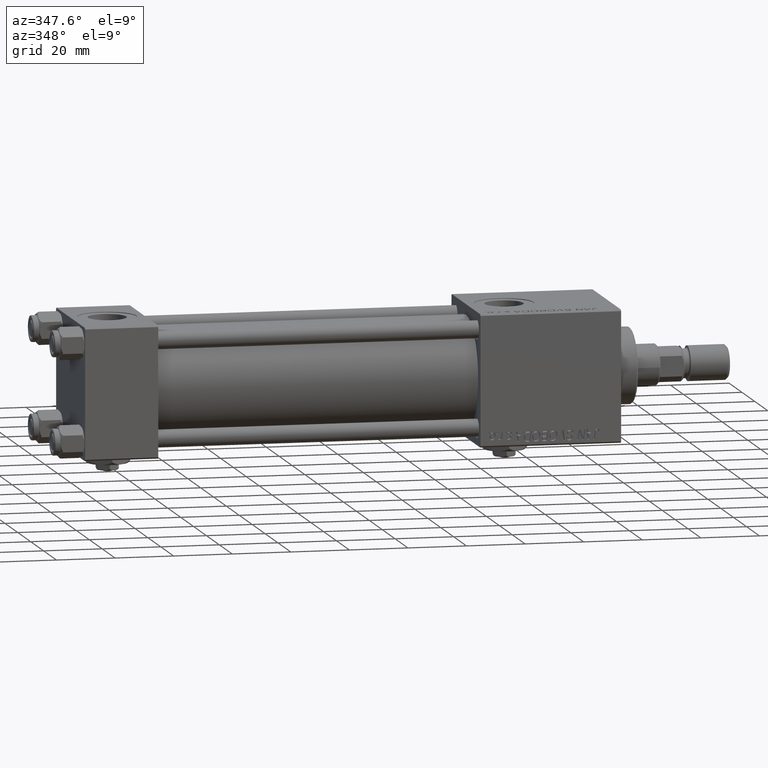
[diagram: clean part render]
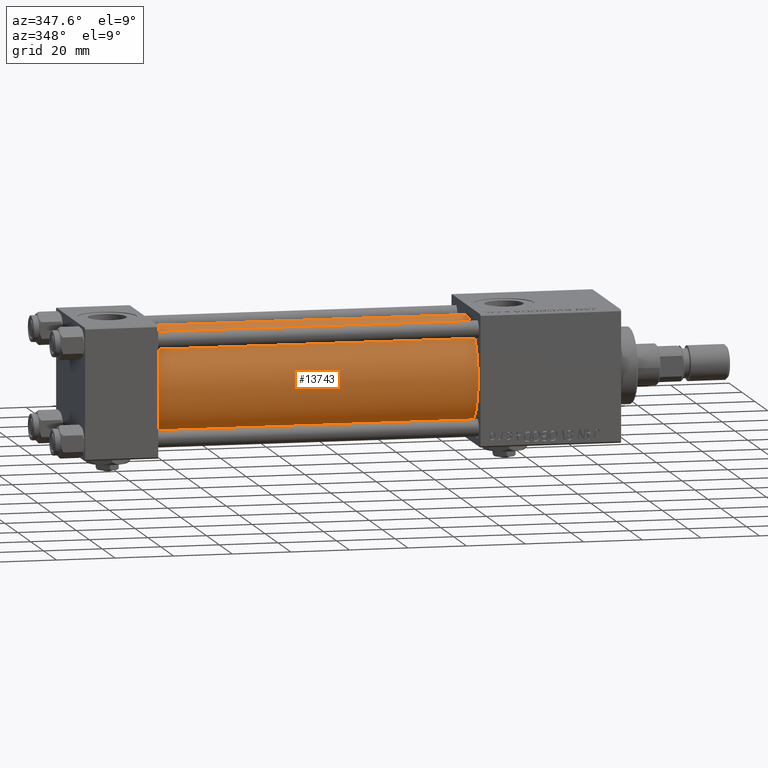
[diagram: same view with one face highlighted and labeled with its STEP entity id]
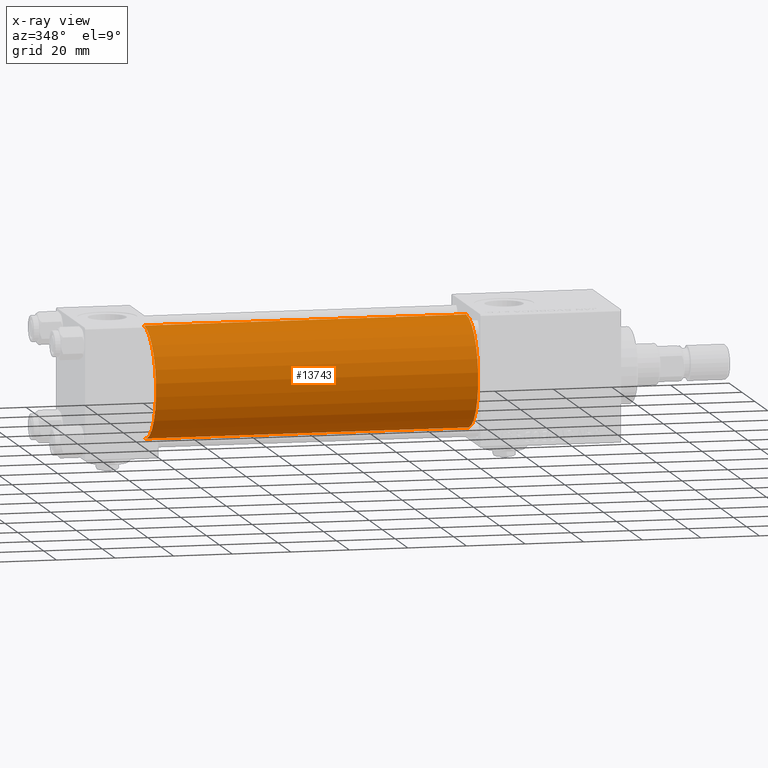
[diagram: x-ray of the same camera — body ghosted, the highlighted face saturated]
A machine part, auxiliary view. The second image highlights one B-rep face of the part: STEP entity #13743.
The next image is the same camera in x-ray: the body ghosted, the highlighted face saturated — about 0% of this face is hidden behind the body in this view.
In plain terms, the highlighted cylindrical surface (partial cylindrical patch) has radius 19 mm, axis along (-1, -0, -0).
Its self-contained STEP definition (entity closure, byte-faithful):
#2746 = CYLINDRICAL_SURFACE ( 'NONE', #46711, 19.00000000000000000 ) ;
#3010 = VERTEX_POINT ( 'NONE', #47278 ) ;
#5319 = ORIENTED_EDGE ( 'NONE', *, *, #43684, .F. ) ;
#9194 = ORIENTED_EDGE ( 'NONE', *, *, #14141, .F. ) ;
#12052 = CARTESIAN_POINT ( 'NONE',  ( 135.0000000000000000, -2.752562955852396712E-16, -19.00000000000000000 ) ) ;
#13743 = ADVANCED_FACE ( 'NONE', ( #34533 ), #2746, .T. ) ;
#13788 = VERTEX_POINT ( 'NONE', #12052 ) ;
#14141 = EDGE_CURVE ( 'NONE', #3010, #13788, #40720, .T. ) ;
#14427 = CARTESIAN_POINT ( 'NONE',  ( 24.99999999999999289, -2.602085213965210642E-15, 19.00000000000000000 ) ) ;
#17123 = ORIENTED_EDGE ( 'NONE', *, *, #44105, .T. ) ;
#17574 = DIRECTION ( 'NONE',  ( 1.000000000000000000, -0.000000000000000000, 0.000000000000000000 ) ) ;
#17578 = DIRECTION ( 'NONE',  ( 0.000000000000000000, 0.000000000000000000, -1.000000000000000000 ) ) ;
#21599 = DIRECTION ( 'NONE',  ( 1.000000000000000000, 0.000000000000000000, 0.000000000000000000 ) ) ;
#23203 = AXIS2_PLACEMENT_3D ( 'NONE', #45371, #17574, #25846 ) ;
#23368 = DIRECTION ( 'NONE',  ( -1.000000000000000000, -0.000000000000000000, -0.000000000000000000 ) ) ;
#25846 = DIRECTION ( 'NONE',  ( 0.000000000000000000, 0.000000000000000000, 1.000000000000000000 ) ) ;
#26253 = ORIENTED_EDGE ( 'NONE', *, *, #26527, .T. ) ;
#26527 = EDGE_CURVE ( 'NONE', #3010, #27794, #30244, .T. ) ;
#27794 = VERTEX_POINT ( 'NONE', #14427 ) ;
#29465 = DIRECTION ( 'NONE',  ( -1.000000000000000000, -0.000000000000000000, -0.000000000000000000 ) ) ;
#30244 = LINE ( 'NONE', #37995, #43643 ) ;
#32163 = CARTESIAN_POINT ( 'NONE',  ( 135.0000000000000000, -2.752562955852396712E-16, -19.00000000000000000 ) ) ;
#33924 = AXIS2_PLACEMENT_3D ( 'NONE', #45376, #21599, #17578 ) ;
#34533 = FACE_OUTER_BOUND ( 'NONE', #35669, .T. ) ;
#35318 = CARTESIAN_POINT ( 'NONE',  ( 135.0000000000000000, -2.602085213965210642E-15, 0.000000000000000000 ) ) ;
#35669 = EDGE_LOOP ( 'NONE', ( #5319, #9194, #26253, #17123 ) ) ;
#36172 = LINE ( 'NONE', #32163, #46189 ) ;
#37995 = CARTESIAN_POINT ( 'NONE',  ( 135.0000000000000000, -2.602085213965210642E-15, 19.00000000000000000 ) ) ;
#40720 = CIRCLE ( 'NONE', #33924, 19.00000000000000000 ) ;
#43643 = VECTOR ( 'NONE', #29465, 1000.000000000000000 ) ;
#43684 = EDGE_CURVE ( 'NONE', #13788, #47635, #36172, .T. ) ;
#44105 = EDGE_CURVE ( 'NONE', #27794, #47635, #46222, .T. ) ;
#45371 = CARTESIAN_POINT ( 'NONE',  ( 24.99999999999999289, -2.602085213965210642E-15, 0.000000000000000000 ) ) ;
#45376 = CARTESIAN_POINT ( 'NONE',  ( 135.0000000000000000, -2.602085213965210642E-15, 0.000000000000000000 ) ) ;
#46189 = VECTOR ( 'NONE', #23368, 1000.000000000000000 ) ;
#46222 = CIRCLE ( 'NONE', #23203, 19.00000000000000000 ) ;
#46711 = AXIS2_PLACEMENT_3D ( 'NONE', #35318, #47352, #50832 ) ;
#47278 = CARTESIAN_POINT ( 'NONE',  ( 135.0000000000000000, -2.602085213965210642E-15, 19.00000000000000000 ) ) ;
#47352 = DIRECTION ( 'NONE',  ( -1.000000000000000000, -0.000000000000000000, -0.000000000000000000 ) ) ;
#47635 = VERTEX_POINT ( 'NONE', #50812 ) ;
#50812 = CARTESIAN_POINT ( 'NONE',  ( 24.99999999999999289, -2.752562955852396712E-16, -19.00000000000000000 ) ) ;
#50832 = DIRECTION ( 'NONE',  ( 0.000000000000000000, 0.000000000000000000, 1.000000000000000000 ) ) ;